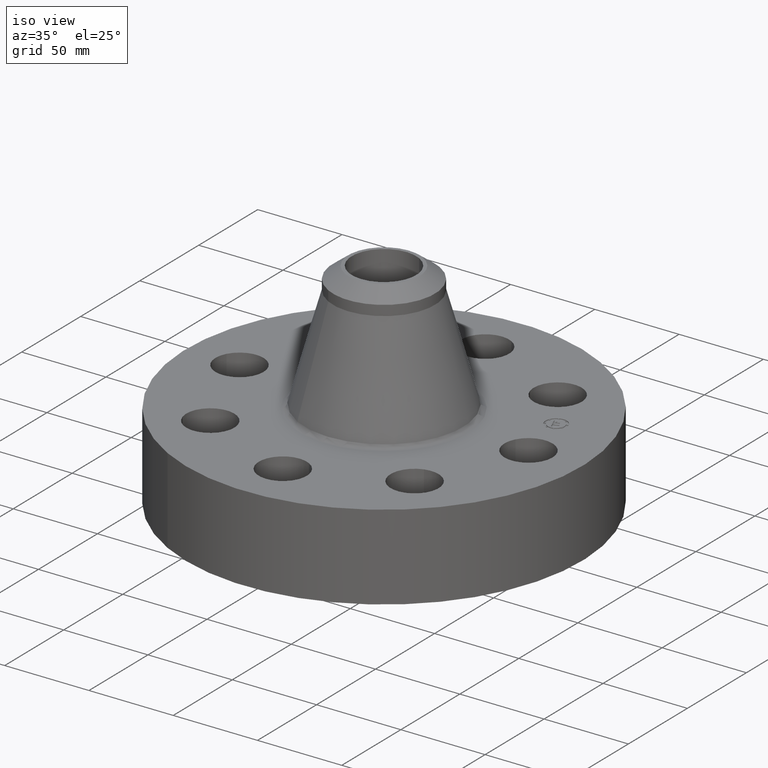
[diagram: clean part render]
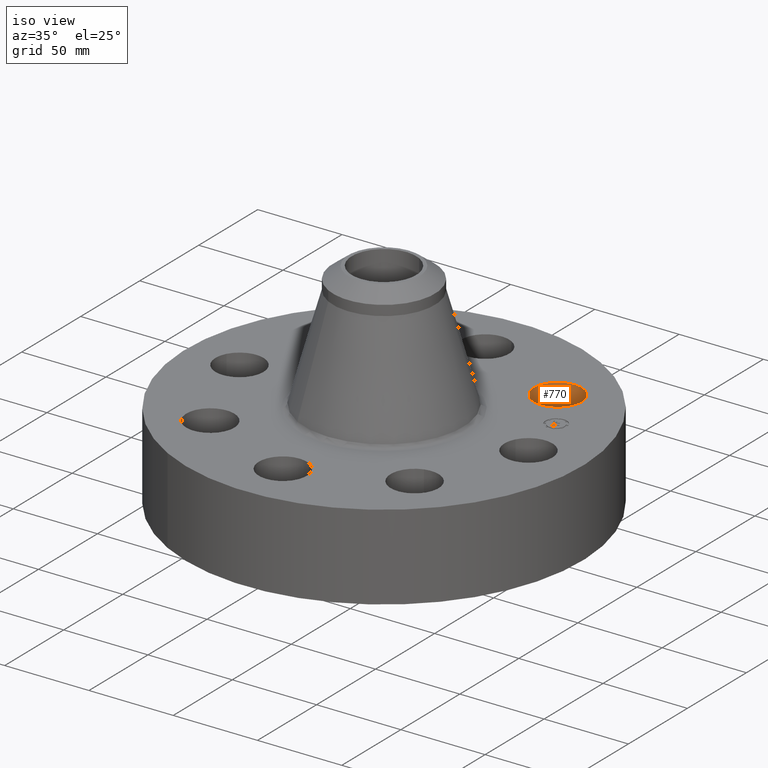
[diagram: same view with one face highlighted and labeled with its STEP entity id]
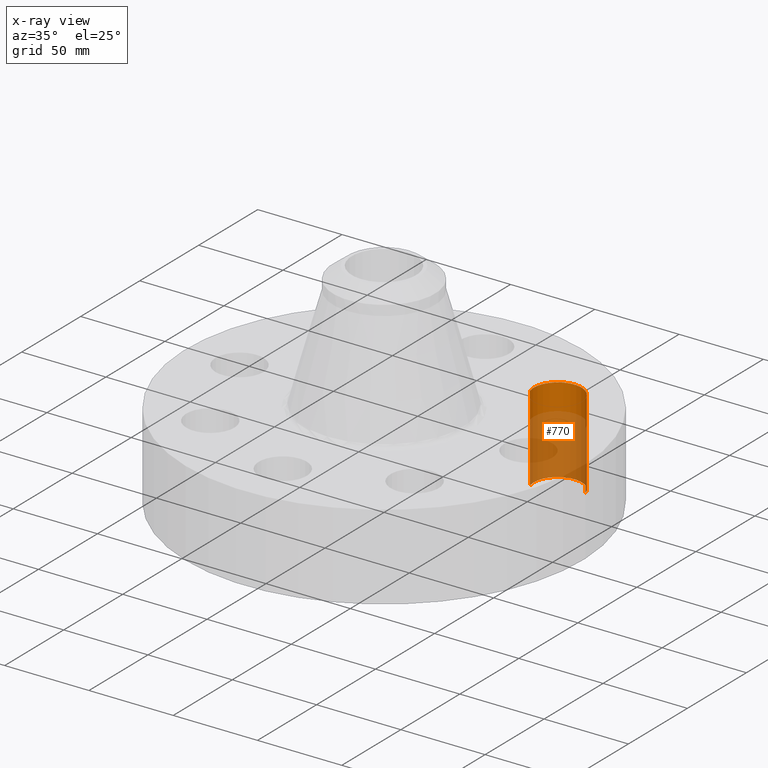
[diagram: x-ray of the same camera — body ghosted, the highlighted face saturated]
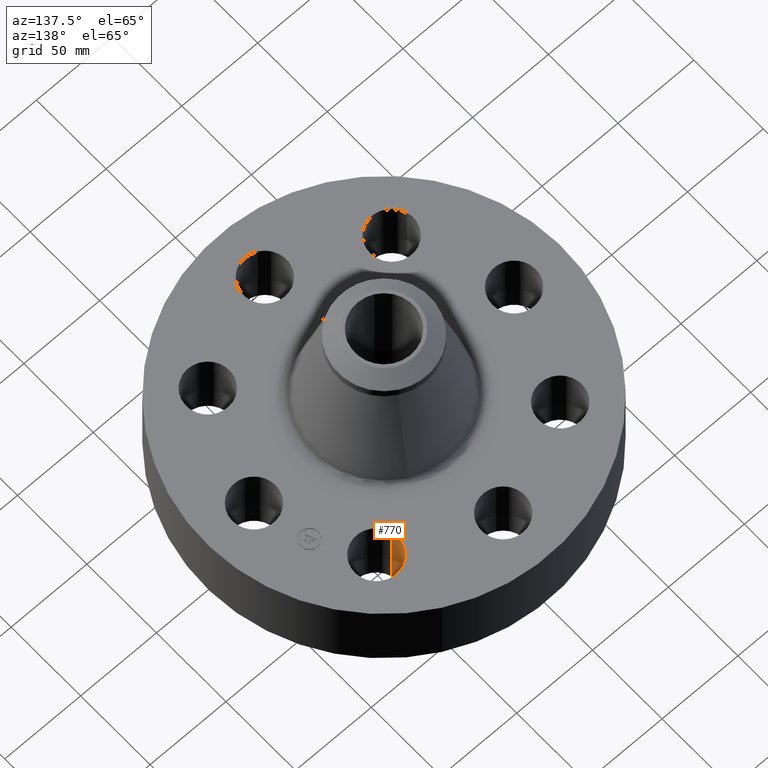
[diagram: same view with one face highlighted and labeled with its STEP entity id]
A machine part, iso view. The second image highlights one B-rep face of the part: STEP entity #770.
The next image is the same camera in x-ray: the body ghosted, the highlighted face saturated — about 69% of this face is hidden behind the body in this view.
A second angle (auxiliary view) of the same face is appended — the face is thin or edge-on in the first view.
In plain terms, the highlighted cylindrical surface (edge-blend (fillet) strip) has radius 14.224 mm, axis along (0, 0, -1).
Its self-contained STEP definition (entity closure, byte-faithful):
#551=AXIS2_PLACEMENT_3D('Circle Axis2P3D',#549,#550,$) ;
#743=AXIS2_PLACEMENT_3D('Cylinder Axis2P3D',#740,#741,#742) ;
#761=AXIS2_PLACEMENT_3D('Circle Axis2P3D',#759,#760,$) ;
#549=CARTESIAN_POINT('Axis2P3D Location',(2.38648538651,2.38648538651,0.)) ;
#553=CARTESIAN_POINT('Vertex',(1.84913759372,2.22882324907,0.)) ;
#555=CARTESIAN_POINT('Vertex',(2.92383317931,2.54414752395,0.)) ;
#740=CARTESIAN_POINT('Axis2P3D Location',(2.38648538651,2.38648538651,1.99606299213)) ;
#745=CARTESIAN_POINT('Line Origine',(1.84913759372,2.22882324907,1.)) ;
#749=CARTESIAN_POINT('Vertex',(1.84913759372,2.22882324907,2.00000000001)) ;
#752=CARTESIAN_POINT('Line Origine',(2.92383317931,2.54414752395,1.)) ;
#756=CARTESIAN_POINT('Vertex',(2.92383317931,2.54414752395,2.00000000001)) ;
#759=CARTESIAN_POINT('Axis2P3D Location',(2.38648538651,2.38648538651,2.00000000001)) ;
#550=DIRECTION('Axis2P3D Direction',(0.,0.,-0.0393700787402)) ;
#741=DIRECTION('Axis2P3D Direction',(0.,0.,-0.0393700787402)) ;
#742=DIRECTION('Axis2P3D XDirection',(0.0377775444876,0.0110842335096,0.)) ;
#746=DIRECTION('Vector Direction',(0.,0.,-0.0393700787402)) ;
#753=DIRECTION('Vector Direction',(0.,0.,-0.0393700787402)) ;
#760=DIRECTION('Axis2P3D Direction',(0.,0.,-0.0393700787402)) ;
#747=VECTOR('Line Direction',#746,0.0393700787402) ;
#754=VECTOR('Line Direction',#753,0.0393700787402) ;
#765=ORIENTED_EDGE('',*,*,#751,.F.) ;
#766=ORIENTED_EDGE('',*,*,#557,.T.) ;
#767=ORIENTED_EDGE('',*,*,#758,.T.) ;
#768=ORIENTED_EDGE('',*,*,#763,.F.) ;
#770=ADVANCED_FACE('PartBody',(#769),#744,.F.) ;
#552=CIRCLE('generated circle',#551,0.560000000002) ;
#762=CIRCLE('generated circle',#761,0.560000000002) ;
#744=CYLINDRICAL_SURFACE('generated cylinder',#743,0.560000000002) ;
#557=EDGE_CURVE('',#554,#556,#552,.T.) ;
#751=EDGE_CURVE('',#554,#750,#748,.F.) ;
#758=EDGE_CURVE('',#556,#757,#755,.F.) ;
#763=EDGE_CURVE('',#750,#757,#762,.T.) ;
#764=EDGE_LOOP('',(#765,#766,#767,#768)) ;
#769=FACE_OUTER_BOUND('',#764,.T.) ;
#748=LINE('Line',#745,#747) ;
#755=LINE('Line',#752,#754) ;
#554=VERTEX_POINT('',#553) ;
#556=VERTEX_POINT('',#555) ;
#750=VERTEX_POINT('',#749) ;
#757=VERTEX_POINT('',#756) ;